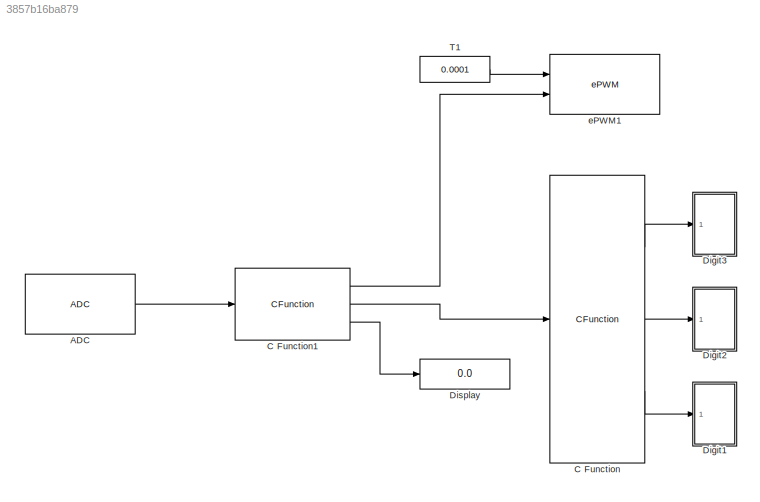
MODEL slx_3857b16ba879
KIND model
CONFIG AbsTol = auto
CONFIG EnableMultiTasking = on
CONFIG FixedStep = auto
CONFIG MaxStep = auto
CONFIG MinStep = auto
CONFIG RelTol = 1e-3
CONFIG SampleTimeConstraint = Unconstrained
CONFIG SolverName = FixedStepAuto
CONFIG StartTime = 0.0
CONFIG StopTime = Inf
BLOCK [Reference] ADC  REF=c2802xlib/ADC
  Ports = [0, 1]
  SourceBlock = c2802xlib/ADC
  SourceProductBaseCode = TIC2000
  SourceType = ADC Type 3-5
  UserDataPersistent = on
BLOCK [CFunction] C Function
  OutputCode = int liczba = (int)wej;\njedn = liczba;\ncz_dzies = (liczba / 10)%10 ;\ncz_setki = liczba / 100;
  Ports = [1, 3]
BLOCK [CFunction] C Function1
  OutputCode = u_adc = (ADC_val/4095)*3.30*100;\nd = (ADC_val/4095)*100;\ndata=(ADC_val/4095)*100;
  Ports = [1, 3]
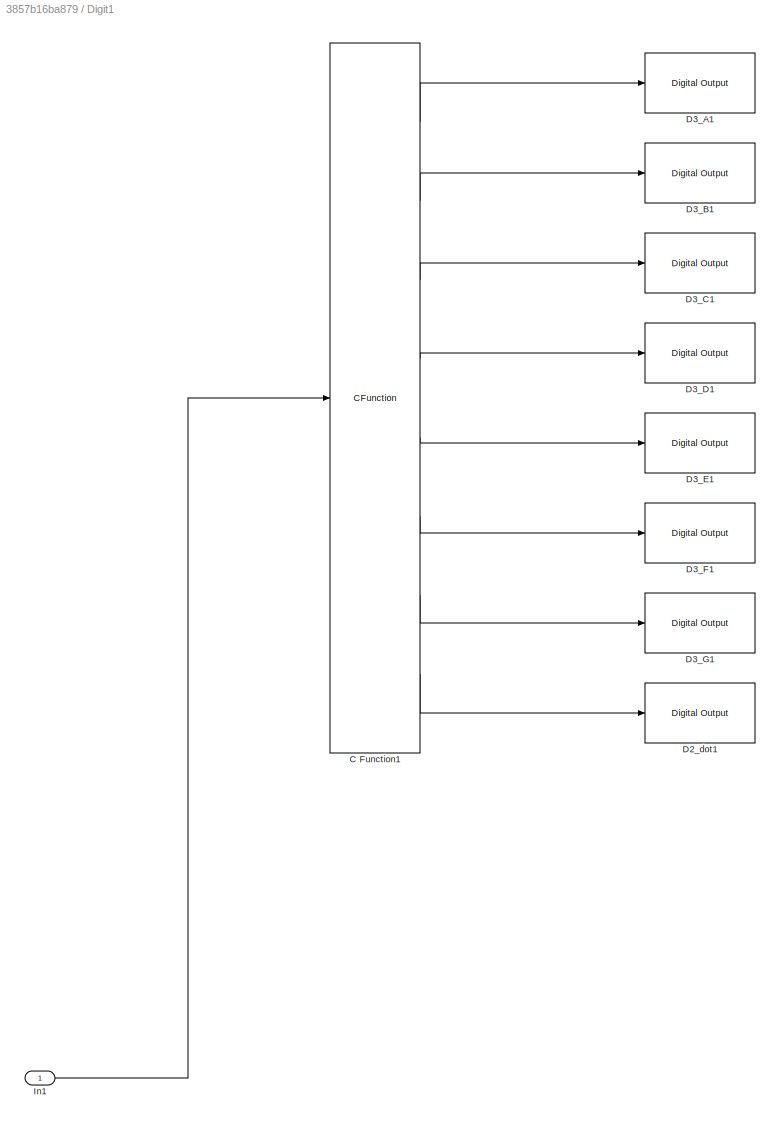
BLOCK [SubSystem] Digit1
  Ports = [1]
  RequestExecContextInheritance = off
BLOCK [CFunction] Digit1/C Function1
  OutputCode = int IN = (int)wej;\n\nswitch(IN)\n{\n\ncase 0:\nA=1;B=1;C=1;D=1;E=1;F=1;G=0;dot=0;\nbreak;\n\ncase 1:\nA=0;B=1;C=1;D=0;E=0;F=0;G=0;dot=0;\nbreak;\n\ncase 2:\nA=1;B=1;C=0;D=1;E=1;F=0;G=1;dot=0;\nbreak;\n\ncase 3:\nA=1;B=1;C=1;D=1;E=0;F=0;G=1;dot=0;\nbreak;\n\ncase 4:\nA=0;B=1;C=1;D=0;E=0;F=1;G=1;dot=0;\nbreak;\n\ncase 5:\nA=1;B=0;C=1;D=1;E=0;F=1;G=1;dot=0;\nbreak;\n\ncase 6:\nA=1;B=0;C=1;D=1;E=1;F=1;G=1;dot=0;\nbreak;\n\ncase 7:\nA...<+190ch>  <repeated x3 — deduplicated; at blocks: C Function1, C Function, C Function2>
  Ports = [1, 8]
BLOCK [Reference] Digit1/D2_dot1  REF=c2837xDlib/Digital Output
  Ports = [1]
  SourceBlock = c2837xDlib/Digital Output
  SourceProductBaseCode = TIC2000
  SourceType = F2837x GPIO Digital Output
  UserDataPersistent = on
BLOCK [Reference] Digit1/D3_A1  REF=c2837xDlib/Digital Output
  Ports = [1]
  SourceBlock = c2837xDlib/Digital Output
  SourceProductBaseCode = TIC2000
  SourceType = F2837x GPIO Digital Output
  UserDataPersistent = on
BLOCK [Reference] Digit1/D3_B1  REF=c2837xDlib/Digital Output
  Ports = [1]
  SourceBlock = c2837xDlib/Digital Output
  SourceProductBaseCode = TIC2000
  SourceType = F2837x GPIO Digital Output
  UserDataPersistent = on
BLOCK [Reference] Digit1/D3_C1  REF=c2837xDlib/Digital Output
  Ports = [1]
  SourceBlock = c2837xDlib/Digital Output
  SourceProductBaseCode = TIC2000
  SourceType = F2837x GPIO Digital Output
  UserDataPersistent = on
BLOCK [Reference] Digit1/D3_D1  REF=c2837xDlib/Digital Output
  Ports = [1]
  SourceBlock = c2837xDlib/Digital Output
  SourceProductBaseCode = TIC2000
  SourceType = F2837x GPIO Digital Output
  UserDataPersistent = on
BLOCK [Reference] Digit1/D3_E1  REF=c2837xDlib/Digital Output
  Ports = [1]
  SourceBlock = c2837xDlib/Digital Output
  SourceProductBaseCode = TIC2000
  SourceType = F2837x GPIO Digital Output
  UserDataPersistent = on
BLOCK [Reference] Digit1/D3_F1  REF=c2837xDlib/Digital Output
  Ports = [1]
  SourceBlock = c2837xDlib/Digital Output
  SourceProductBaseCode = TIC2000
  SourceType = F2837x GPIO Digital Output
  UserDataPersistent = on
BLOCK [Reference] Digit1/D3_G1  REF=c2837xDlib/Digital Output
  Ports = [1]
  SourceBlock = c2837xDlib/Digital Output
  SourceProductBaseCode = TIC2000
  SourceType = F2837x GPIO Digital Output
  UserDataPersistent = on
BLOCK [Inport] Digit1/In1
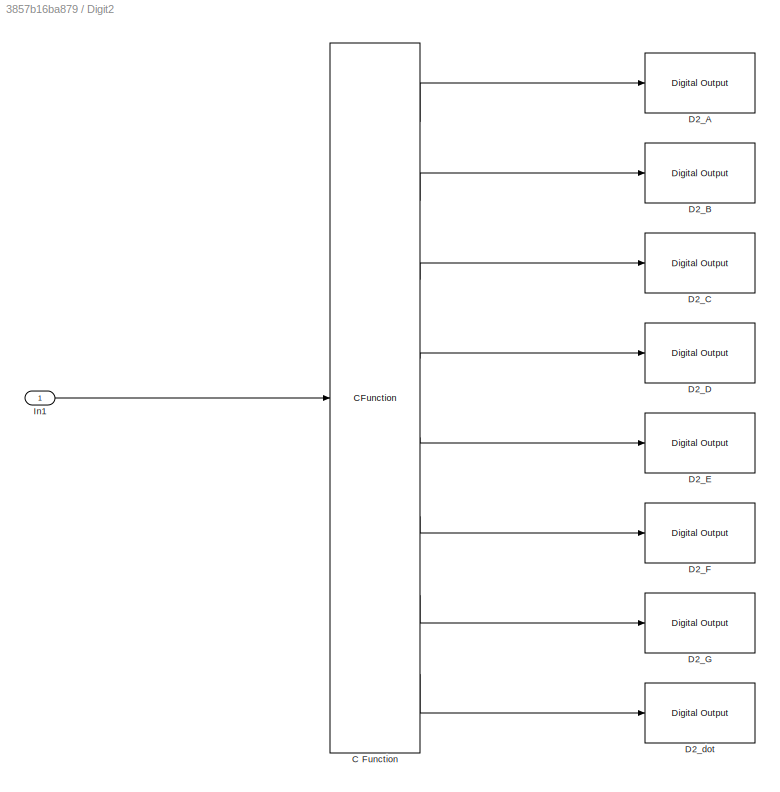
BLOCK [SubSystem] Digit2
  Ports = [1]
  RequestExecContextInheritance = off
BLOCK [CFunction] Digit2/C Function
  Ports = [1, 8]
BLOCK [Reference] Digit2/D2_A  REF=c2837xDlib/Digital Output
  Ports = [1]
  SourceBlock = c2837xDlib/Digital Output
  SourceProductBaseCode = TIC2000
  SourceType = F2837x GPIO Digital Output
  UserDataPersistent = on
BLOCK [Reference] Digit2/D2_B  REF=c2837xDlib/Digital Output
  Ports = [1]
  SourceBlock = c2837xDlib/Digital Output
  SourceProductBaseCode = TIC2000
  SourceType = F2837x GPIO Digital Output
  UserDataPersistent = on
BLOCK [Reference] Digit2/D2_C  REF=c2837xDlib/Digital Output
  Ports = [1]
  SourceBlock = c2837xDlib/Digital Output
  SourceProductBaseCode = TIC2000
  SourceType = F2837x GPIO Digital Output
  UserDataPersistent = on
BLOCK [Reference] Digit2/D2_D  REF=c2837xDlib/Digital Output
  Ports = [1]
  SourceBlock = c2837xDlib/Digital Output
  SourceProductBaseCode = TIC2000
  SourceType = F2837x GPIO Digital Output
  UserDataPersistent = on
BLOCK [Reference] Digit2/D2_E  REF=c2837xDlib/Digital Output
  Ports = [1]
  SourceBlock = c2837xDlib/Digital Output
  SourceProductBaseCode = TIC2000
  SourceType = F2837x GPIO Digital Output
  UserDataPersistent = on
BLOCK [Reference] Digit2/D2_F  REF=c2837xDlib/Digital Output
  Ports = [1]
  SourceBlock = c2837xDlib/Digital Output
  SourceProductBaseCode = TIC2000
  SourceType = F2837x GPIO Digital Output
  UserDataPersistent = on
BLOCK [Reference] Digit2/D2_G  REF=c2837xDlib/Digital Output
  Ports = [1]
  SourceBlock = c2837xDlib/Digital Output
  SourceProductBaseCode = TIC2000
  SourceType = F2837x GPIO Digital Output
  UserDataPersistent = on
BLOCK [Reference] Digit2/D2_dot  REF=c2837xDlib/Digital Output
  Ports = [1]
  SourceBlock = c2837xDlib/Digital Output
  SourceProductBaseCode = TIC2000
  SourceType = F2837x GPIO Digital Output
  UserDataPersistent = on
BLOCK [Inport] Digit2/In1
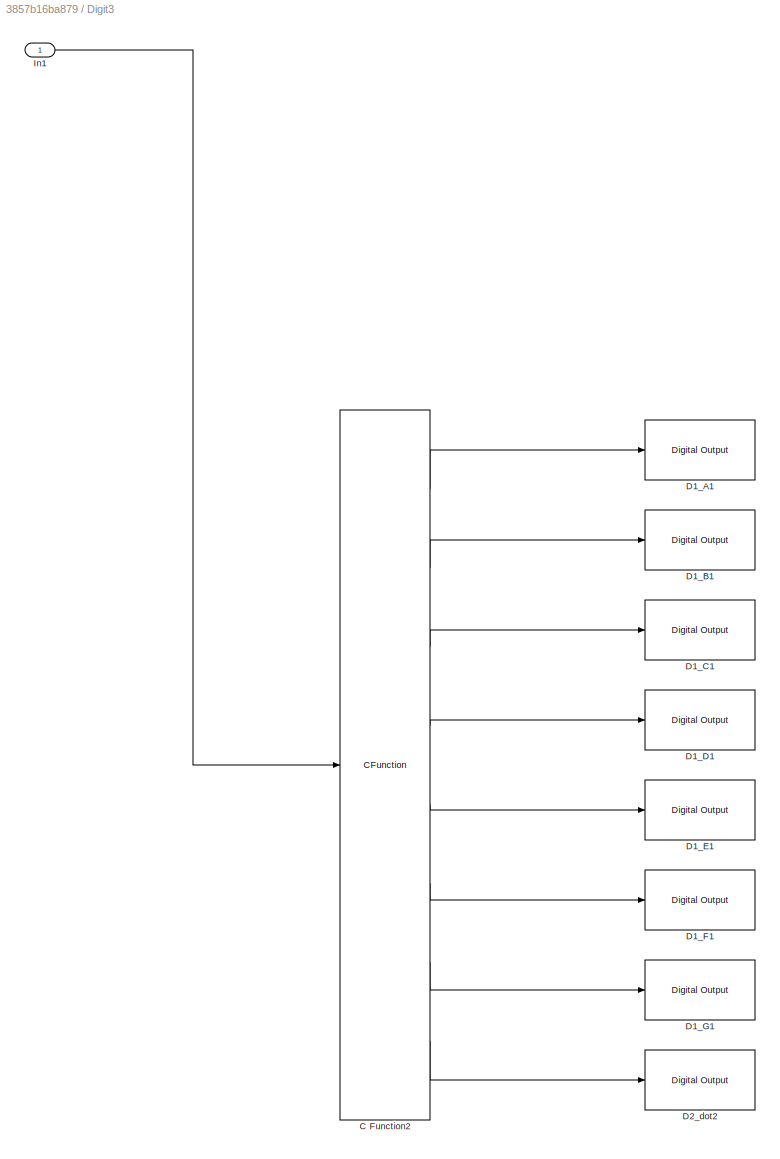
BLOCK [SubSystem] Digit3
  Ports = [1]
  RequestExecContextInheritance = off
BLOCK [CFunction] Digit3/C Function2
  Ports = [1, 8]
BLOCK [Reference] Digit3/D1_A1  REF=c2837xDlib/Digital Output
  Ports = [1]
  SourceBlock = c2837xDlib/Digital Output
  SourceProductBaseCode = TIC2000
  SourceType = F2837x GPIO Digital Output
  UserDataPersistent = on
BLOCK [Reference] Digit3/D1_B1  REF=c2837xDlib/Digital Output
  Ports = [1]
  SourceBlock = c2837xDlib/Digital Output
  SourceProductBaseCode = TIC2000
  SourceType = F2837x GPIO Digital Output
  UserDataPersistent = on
BLOCK [Reference] Digit3/D1_C1  REF=c2837xDlib/Digital Output
  Ports = [1]
  SourceBlock = c2837xDlib/Digital Output
  SourceProductBaseCode = TIC2000
  SourceType = F2837x GPIO Digital Output
  UserDataPersistent = on
BLOCK [Reference] Digit3/D1_D1  REF=c2837xDlib/Digital Output
  Ports = [1]
  SourceBlock = c2837xDlib/Digital Output
  SourceProductBaseCode = TIC2000
  SourceType = F2837x GPIO Digital Output
  UserDataPersistent = on
BLOCK [Reference] Digit3/D1_E1  REF=c2837xDlib/Digital Output
  Ports = [1]
  SourceBlock = c2837xDlib/Digital Output
  SourceProductBaseCode = TIC2000
  SourceType = F2837x GPIO Digital Output
  UserDataPersistent = on
BLOCK [Reference] Digit3/D1_F1  REF=c2837xDlib/Digital Output
  Ports = [1]
  SourceBlock = c2837xDlib/Digital Output
  SourceProductBaseCode = TIC2000
  SourceType = F2837x GPIO Digital Output
  UserDataPersistent = on
BLOCK [Reference] Digit3/D1_G1  REF=c2837xDlib/Digital Output
  Ports = [1]
  SourceBlock = c2837xDlib/Digital Output
  SourceProductBaseCode = TIC2000
  SourceType = F2837x GPIO Digital Output
  UserDataPersistent = on
BLOCK [Reference] Digit3/D2_dot2  REF=c2837xDlib/Digital Output
  Ports = [1]
  SourceBlock = c2837xDlib/Digital Output
  SourceProductBaseCode = TIC2000
  SourceType = F2837x GPIO Digital Output
  UserDataPersistent = on
BLOCK [Inport] Digit3/In1
BLOCK [Display] Display
  Decimation = 1
  Ports = [1]
BLOCK [Constant] T1
  Value = 0.0001
BLOCK [Reference] ePWM1  REF=c2802xlib/ePWM
  Ports = [2]
  SourceBlock = c2802xlib/ePWM
  SourceProductBaseCode = TIC2000
  SourceType = ePWM Type 1-4
  UserDataPersistent = on
LINE ADC:1 -> C Function1:1
LINE C Function1:1 -> ePWM1:2
LINE C Function1:2 -> C Function:1
LINE C Function1:3 -> Display:1
LINE C Function:1 -> Digit3:1
LINE C Function:2 -> Digit2:1
LINE C Function:3 -> Digit1:1
LINE Digit1/C Function1:1 -> Digit1/D3_A1:1
LINE Digit1/C Function1:2 -> Digit1/D3_B1:1
LINE Digit1/C Function1:3 -> Digit1/D3_C1:1
LINE Digit1/C Function1:4 -> Digit1/D3_D1:1
LINE Digit1/C Function1:5 -> Digit1/D3_E1:1
LINE Digit1/C Function1:6 -> Digit1/D3_F1:1
LINE Digit1/C Function1:7 -> Digit1/D3_G1:1
LINE Digit1/C Function1:8 -> Digit1/D2_dot1:1
LINE Digit1/In1:1 -> Digit1/C Function1:1
LINE Digit2/C Function:1 -> Digit2/D2_A:1
LINE Digit2/C Function:2 -> Digit2/D2_B:1
LINE Digit2/C Function:3 -> Digit2/D2_C:1
LINE Digit2/C Function:4 -> Digit2/D2_D:1
LINE Digit2/C Function:5 -> Digit2/D2_E:1
LINE Digit2/C Function:6 -> Digit2/D2_F:1
LINE Digit2/C Function:7 -> Digit2/D2_G:1
LINE Digit2/C Function:8 -> Digit2/D2_dot:1
LINE Digit2/In1:1 -> Digit2/C Function:1
LINE Digit3/C Function2:1 -> Digit3/D1_A1:1
LINE Digit3/C Function2:2 -> Digit3/D1_B1:1
LINE Digit3/C Function2:3 -> Digit3/D1_C1:1
LINE Digit3/C Function2:4 -> Digit3/D1_D1:1
LINE Digit3/C Function2:5 -> Digit3/D1_E1:1
LINE Digit3/C Function2:6 -> Digit3/D1_F1:1
LINE Digit3/C Function2:7 -> Digit3/D1_G1:1
LINE Digit3/C Function2:8 -> Digit3/D2_dot2:1
LINE Digit3/In1:1 -> Digit3/C Function2:1
LINE T1:1 -> ePWM1:1
